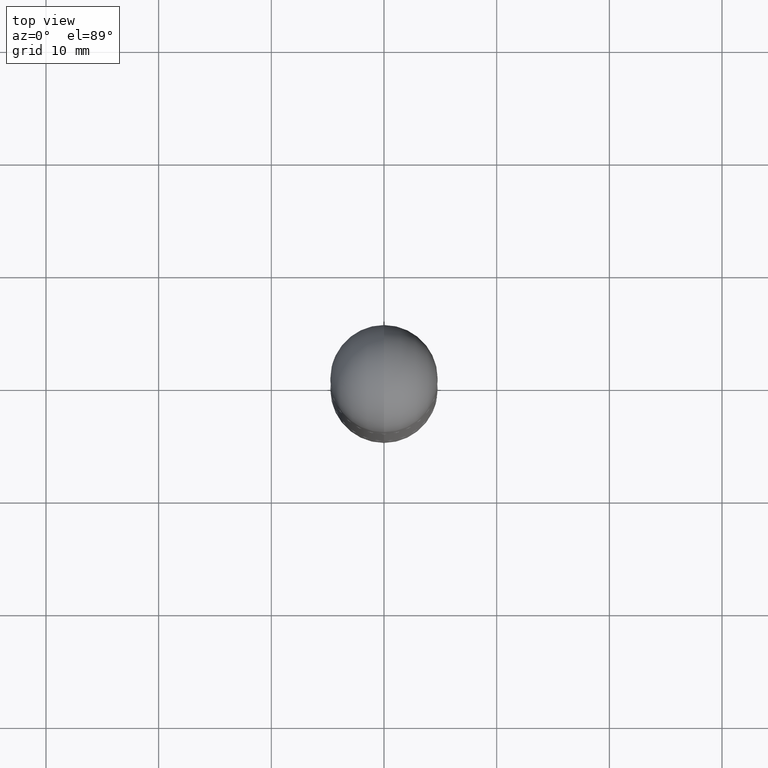
[diagram: clean part render]
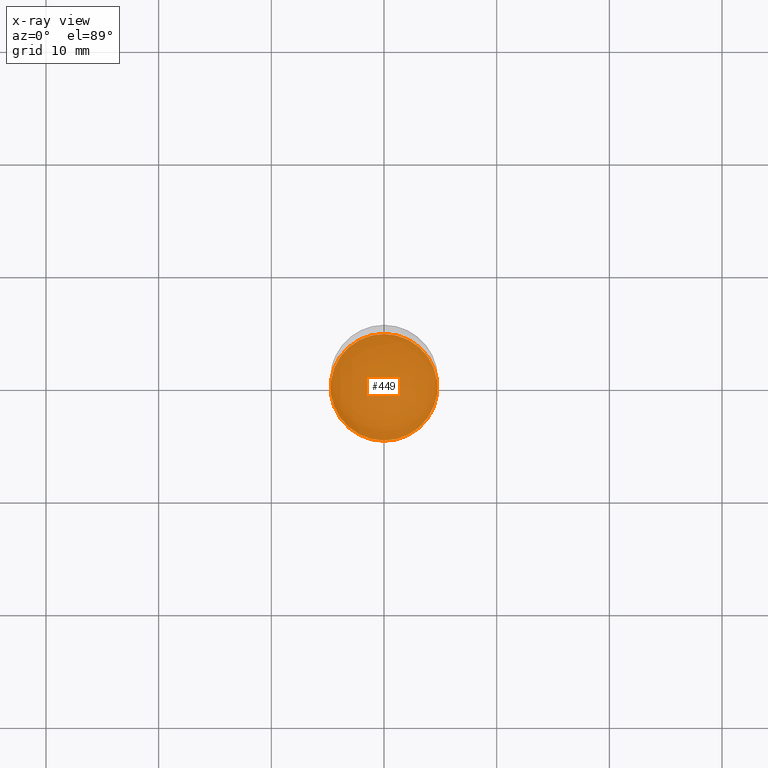
[diagram: x-ray — body ghosted, one internal face saturated and labeled with its STEP entity id]
A machine part, top view, then the same camera in x-ray: the body is ghosted and one INTERNAL B-rep face — a face not visible from any outside direction — is saturated and labeled: STEP entity #449.
In plain terms, the highlighted planar face has unit normal (-0, 0, 1).
Its self-contained STEP definition (entity closure, byte-faithful):
#30 = EDGE_CURVE ( 'NONE', #423, #807, #278, .T. ) ;
#52 = CARTESIAN_POINT ( 'NONE',  ( 1.328714915871435071E-15, 0.1864999999999932268, -1.938000000000000389 ) ) ;
#60 = CARTESIAN_POINT ( 'NONE',  ( 4.738343769778624379E-29, -6.767886770261754503E-15, -1.937999999999999945 ) ) ;
#68 = EDGE_LOOP ( 'NONE', ( #617, #493 ) ) ;
#123 = FACE_OUTER_BOUND ( 'NONE', #68, .T. ) ;
#162 = CARTESIAN_POINT ( 'NONE',  ( 4.738343769778624379E-29, -6.767886770261754503E-15, -1.937999999999999945 ) ) ;
#246 = DIRECTION ( 'NONE',  ( -6.982962677686265922E-15, -1.000000000000000000, 2.929595703661408850E-15 ) ) ;
#278 = CIRCLE ( 'NONE', #541, 0.1864999999999999714 ) ;
#279 = AXIS2_PLACEMENT_3D ( 'NONE', #60, #314, #570 ) ;
#314 = DIRECTION ( 'NONE',  ( -2.444965825479165824E-29, 3.492201635841979178E-15, 1.000000000000000000 ) ) ;
#334 = DIRECTION ( 'NONE',  ( -6.982962677686265922E-15, -1.000000000000000000, 2.929595703661408850E-15 ) ) ;
#375 = PLANE ( 'NONE',  #279 ) ;
#423 = VERTEX_POINT ( 'NONE', #427 ) ;
#427 = CARTESIAN_POINT ( 'NONE',  ( -1.302322539388441071E-15, -0.1865000000000067437, -1.937999999999999279 ) ) ;
#438 = DIRECTION ( 'NONE',  ( -2.444965825479166385E-29, 3.492201635841978784E-15, 1.000000000000000000 ) ) ;
#449 = ADVANCED_FACE ( 'NONE', ( #123 ), #375, .F. ) ;
#493 = ORIENTED_EDGE ( 'NONE', *, *, #759, .F. ) ;
#518 = DIRECTION ( 'NONE',  ( -2.444965825479166385E-29, 3.492201635841978784E-15, 1.000000000000000000 ) ) ;
#538 = CIRCLE ( 'NONE', #780, 0.1864999999999999714 ) ;
#541 = AXIS2_PLACEMENT_3D ( 'NONE', #762, #518, #334 ) ;
#570 = DIRECTION ( 'NONE',  ( -6.982962677686265922E-15, -1.000000000000000000, 3.492201635841979178E-15 ) ) ;
#617 = ORIENTED_EDGE ( 'NONE', *, *, #30, .F. ) ;
#759 = EDGE_CURVE ( 'NONE', #807, #423, #538, .T. ) ;
#762 = CARTESIAN_POINT ( 'NONE',  ( 4.738343769778624379E-29, -6.767886770261754503E-15, -1.937999999999999945 ) ) ;
#780 = AXIS2_PLACEMENT_3D ( 'NONE', #162, #438, #246 ) ;
#807 = VERTEX_POINT ( 'NONE', #52 ) ;